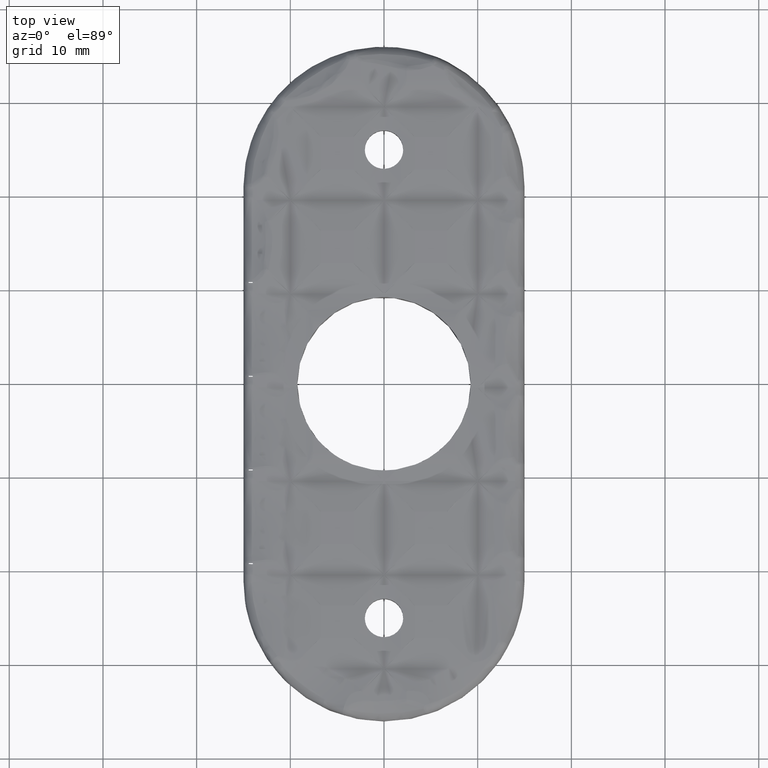
[diagram: clean part render]
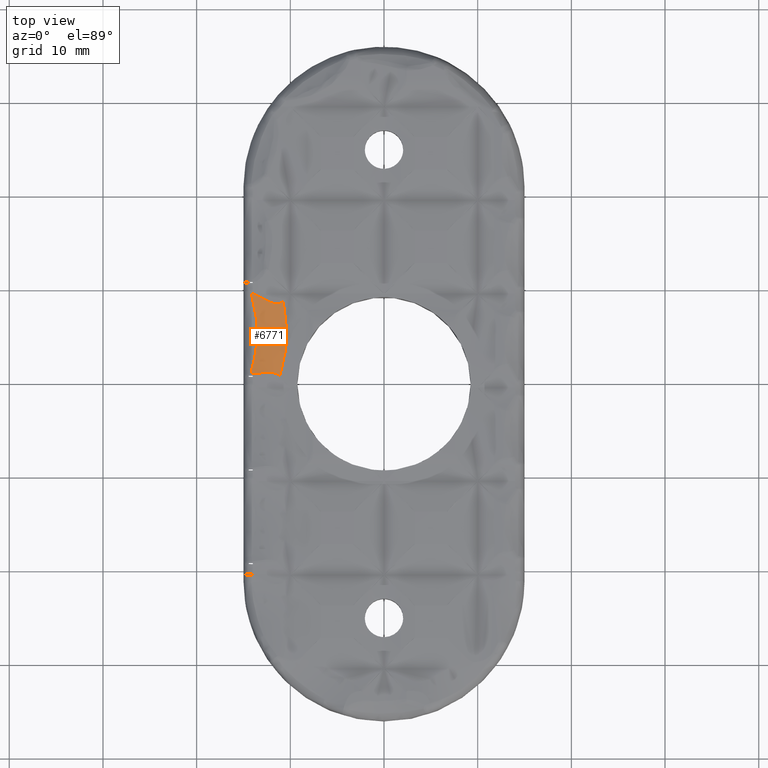
[diagram: same view with one face highlighted and labeled with its STEP entity id]
A machine part, top view. The second image highlights one B-rep face of the part: STEP entity #6771.
In plain terms, the highlighted face is a freeform B-spline surface patch.
Its self-contained STEP definition (entity closure, byte-faithful):
#437 = CARTESIAN_POINT ( 'NONE',  ( -10.87466178414930000, 8.699765000557459200, 3.281766979996149700 ) ) ;
#519 = CARTESIAN_POINT ( 'NONE',  ( -11.42092740004266500, 8.547254424072859200, 3.293171587339630300 ) ) ;
#610 = CARTESIAN_POINT ( 'NONE',  ( -12.48184899409607400, 8.823758500154626800, 3.265062507133348100 ) ) ;
#691 = CARTESIAN_POINT ( 'NONE',  ( -13.50750079150620700, 9.406155201346189500, 3.234101297676752500 ) ) ;
#776 = CARTESIAN_POINT ( 'NONE',  ( -13.37116701426320700, 1.146192001856436200, 3.315214914202278900 ) ) ;
#862 = CARTESIAN_POINT ( 'NONE',  ( -12.09510130457092300, 1.218639430366806400, 3.343910580868963300 ) ) ;
#916 = CARTESIAN_POINT ( 'NONE',  ( -13.04417683816766900, 0.09030010236800163600, 3.592215643987426000 ) ) ;
#953 = CARTESIAN_POINT ( 'NONE',  ( -11.20446670925250900, 0.9124958974216875700, 3.312536164362442500 ) ) ;
#1009 = CARTESIAN_POINT ( 'NONE',  ( -11.63319821652235600, -0.6081791308298403200, 3.363873608086515300 ) ) ;
#1085 = CARTESIAN_POINT ( 'NONE',  ( -12.39944851465211800, 2.075227780815310600, 3.409473423947328100 ) ) ;
#1174 = CARTESIAN_POINT ( 'NONE',  ( -13.56409166697590000, 4.414832797354014500, 2.909016898504811300 ) ) ;
#1276 = CARTESIAN_POINT ( 'NONE',  ( -10.43549560113782200, 5.918651907426072600, 3.258198029076116800 ) ) ;
#1281 = CARTESIAN_POINT ( 'NONE',  ( -13.51958920513204300, 6.231592275085016100, 2.890499514395492600 ) ) ;
#1360 = CARTESIAN_POINT ( 'NONE',  ( -12.16341554512006300, 7.758583181134633300, 3.352130903120381900 ) ) ;
#1381 = CARTESIAN_POINT ( 'NONE',  ( -10.45949719331283300, 6.505171566060156800, 3.259127644572987300 ) ) ;
#1388 = ORIENTED_EDGE ( 'NONE', *, *, #13822, .T. ) ;
#1453 = CARTESIAN_POINT ( 'NONE',  ( -14.09643494445368700, 9.386120124792872900, 3.157733382537171600 ) ) ;
#1581 = CARTESIAN_POINT ( 'NONE',  ( -14.11273421136011800, 9.538250974054214700, 3.190425069796529300 ) ) ;
#2487 = VERTEX_POINT ( 'NONE', #19952 ) ;
#2616 = CARTESIAN_POINT ( 'NONE',  ( -11.53762277036861600, 8.548935912460365200, 3.292480972402487300 ) ) ;
#2704 = CARTESIAN_POINT ( 'NONE',  ( -12.73936669725891800, 8.955826002118197200, 3.255129159980486400 ) ) ;
#2787 = CARTESIAN_POINT ( 'NONE',  ( -13.62113267563676400, 9.471169034156524400, 3.232425419147550100 ) ) ;
#2874 = CARTESIAN_POINT ( 'NONE',  ( -13.32663879511839500, 1.152500130091513600, 3.316880323941927800 ) ) ;
#2965 = CARTESIAN_POINT ( 'NONE',  ( -11.89440570719550600, 1.190593939990756600, 3.342199290745189200 ) ) ;
#3097 = CARTESIAN_POINT ( 'NONE',  ( -14.15920025275442400, 1.448945431593638300, 3.190510178194459400 ) ) ;
#3185 = CARTESIAN_POINT ( 'NONE',  ( -10.88957950123553300, 1.627224252164623000, 3.284107355439476200 ) ) ;
#3267 = CARTESIAN_POINT ( 'NONE',  ( -12.04529104366121900, 4.382541873280622700, 3.325786844335302500 ) ) ;
#3346 = CARTESIAN_POINT ( 'NONE',  ( -13.52082440927108600, 5.783211263811679700, 2.891016134130446300 ) ) ;
#3352 = CARTESIAN_POINT ( 'NONE',  ( -13.53436659071912600, 4.799380890827339200, 2.896544140747739700 ) ) ;
#3365 = CARTESIAN_POINT ( 'NONE',  ( -11.05808497606114400, 1.007320153464411800, 3.298484344969879500 ) ) ;
#3443 = CARTESIAN_POINT ( 'NONE',  ( -10.86493635286983500, 9.335216498230813900, 3.281854033909832300 ) ) ;
#3469 = CARTESIAN_POINT ( 'NONE',  ( -10.55927620057288000, 7.659623143345839900, 3.263409684701794600 ) ) ;
#3545 = CARTESIAN_POINT ( 'NONE',  ( -12.94929926430130600, 10.70966542701519900, 3.562907734666128900 ) ) ;
#4614 = CARTESIAN_POINT ( 'NONE',  ( -10.75634458533840700, 8.795046064061816400, 3.274764121687998600 ) ) ;
#4616 = B_SPLINE_CURVE_WITH_KNOTS ( 'NONE', 3,
 ( #4614, #25407, #437, #6679, #21281, #8791, #23390, #10875, #25493, #12978, #519, #15079, #2616, #17172, #4691, #19267, #6772, #21363, #8871, #23481, #10965, #25573, #13060, #610, #15170, #2704, #17265, #4783, #19356, #6863, #21459, #8963, #23571, #11056, #25665, #13149, #691, #15256, #2787, #17347, #4870, #19446, #6952, #21538, #9052, #23657, #11141 ),
 .UNSPECIFIED., .F., .F.,
 ( 4, 2, 1, 2, 2, 2, 1, 2, 2, 2, 1, 1, 1, 2, 2, 2, 2, 1, 1, 2, 2, 2, 1, 1, 1, 1, 2, 2, 4 ),
 ( 0.0000000000000000000, 0.06250000000001071400, 0.09375000000001607000, 0.1093750000000187500, 0.1250000000000214300, 0.1875000000000328100, 0.2187500000000385000, 0.2343750000000413600, 0.2500000000000441900, 0.3750000000000592300, 0.4375000000000665600, 0.4687500000000695600, 0.4843750000000711100, 0.4921875000000710000, 0.5000000000000708300, 0.6250000000000677200, 0.6875000000000663900, 0.7187500000000655000, 0.7343750000000646100, 0.7421875000000645000, 0.7500000000000643900, 0.8125000000000509600, 0.8437500000000444100, 0.8593750000000407500, 0.8671875000000391900, 0.8710937500000384100, 0.8730468750000377500, 0.8750000000000370800, 1.000000000000000000 ),
 .UNSPECIFIED. ) ;
#4691 = CARTESIAN_POINT ( 'NONE',  ( -11.59917093864217100, 8.553216121277667800, 3.291786912753381000 ) ) ;
#4783 = CARTESIAN_POINT ( 'NONE',  ( -13.00731904673654800, 9.109683404701140600, 3.246056956104186800 ) ) ;
#4870 = CARTESIAN_POINT ( 'NONE',  ( -13.66906362004024300, 9.497935616048451400, 3.231825096355314100 ) ) ;
#4959 = CARTESIAN_POINT ( 'NONE',  ( -13.05064809003074600, 1.189444943052436100, 3.326736286243830800 ) ) ;
#5037 = CARTESIAN_POINT ( 'NONE',  ( -11.81919834557308100, 1.175238429485362800, 3.340858013633919700 ) ) ;
#5175 = CARTESIAN_POINT ( 'NONE',  ( -12.75344707017632500, 0.8298454196064046800, 3.504347110888454500 ) ) ;
#5264 = CARTESIAN_POINT ( 'NONE',  ( -13.77290830987101300, 2.933399083230137500, 3.000712335627175900 ) ) ;
#5347 = CARTESIAN_POINT ( 'NONE',  ( -10.44875268274208000, 4.731759057720472200, 3.258696660578375100 ) ) ;
#5439 = CARTESIAN_POINT ( 'NONE',  ( -12.02527892522976000, 6.334816474213909900, 3.321404032283717300 ) ) ;
#5449 = CARTESIAN_POINT ( 'NONE',  ( -13.63193643699951400, 3.762760040796899700, 2.937713720204648800 ) ) ;
#5463 = CARTESIAN_POINT ( 'NONE',  ( -10.88958192268262500, 1.627225364026385400, 3.284107542422489700 ) ) ;
#5534 = CARTESIAN_POINT ( 'NONE',  ( -13.75983921469286900, 8.052052350926397000, 2.994496792762165500 ) ) ;
#5556 = CARTESIAN_POINT ( 'NONE',  ( -10.75434718435680300, 8.785137073939958800, 3.274633317936466200 ) ) ;
#5665 = ORIENTED_EDGE ( 'NONE', *, *, #11723, .F. ) ;
#6185 = ORIENTED_EDGE ( 'NONE', *, *, #23645, .F. ) ;
#6270 =( BOUNDED_CURVE ( )  B_SPLINE_CURVE ( 3, ( #11569, #26261, #3365, #17966, #5463, #20051, #7565, #22186, #9667, #24268, #11754, #26363, #13874, #1381, #15943, #3469, #18058, #5556, #20150, #7660 ),
 .UNSPECIFIED., .F., .T. ) 
 B_SPLINE_CURVE_WITH_KNOTS ( ( 4, 2, 2, 2, 2, 2, 2, 2, 2, 4 ),
 ( 0.0000000000000000000, 0.03789907707367977400, 0.1445874209061086000, 0.3579641085709662800, 0.4646524524033955300, 0.5713407962358239000, 0.6780291400682523200, 0.7847174839006816300, 0.9980941715655392600, 1.000000000000000000 ),
 .UNSPECIFIED. ) 
 CURVE ( )  GEOMETRIC_REPRESENTATION_ITEM ( )  RATIONAL_B_SPLINE_CURVE ( ( 0.9999999782882212900, 0.9999999783321234000, 0.9999999783758946000, 0.9999999785417952300, 0.9999999786625273200, 0.9999999790017243300, 0.9999999791961837700, 0.9999999794060492300, 0.9999999794624612200, 0.9999999795437425300, 0.9999999795685481400, 0.9999999795832778000, 0.9999999795732350500, 0.9999999795201551800, 0.9999999794771943200, 0.9999999793042714200, 0.9999999791297846700, 0.9999999789143463300, 0.9999999789124365300, 0.9999999789105242800 ) ) 
 REPRESENTATION_ITEM ( '' )  );
#6679 = CARTESIAN_POINT ( 'NONE',  ( -10.97575507670656200, 8.647046270643265600, 3.285904851254221700 ) ) ;
#6771 = ADVANCED_FACE ( 'NONE', ( #15491 ), #7012, .T. ) ;
#6772 = CARTESIAN_POINT ( 'NONE',  ( -11.90268699193285900, 8.601091141775944100, 3.285764694541534000 ) ) ;
#6863 = CARTESIAN_POINT ( 'NONE',  ( -13.16373132814889900, 9.202200883054201700, 3.241500632340805300 ) ) ;
#6952 = CARTESIAN_POINT ( 'NONE',  ( -13.68061624377376300, 9.504334812896132700, 3.231688039706854400 ) ) ;
#7012 =( BOUNDED_SURFACE ( )  B_SPLINE_SURFACE ( 3, 2, ( 
 ( #25977, #916, #13482 ),
 ( #1009, #15558, #3097 ),
 ( #17678, #5175, #19755 ),
 ( #7268, #21879, #9373 ),
 ( #23973, #11464, #26069 ),
 ( #13568, #1085, #15655 ),
 ( #3185, #17763, #5264 ),
 ( #19854, #7355, #21964 ),
 ( #9469, #24066, #11552 ),
 ( #26153, #13667, #1174 ),
 ( #15732, #3267, #17852 ),
 ( #5347, #19936, #7451 ),
 ( #22060, #9551, #24166 ),
 ( #11646, #26242, #13764 ),
 ( #1276, #15821, #3346 ),
 ( #17948, #5439, #20029 ),
 ( #7545, #22169, #9646 ),
 ( #24252, #11736, #26344 ),
 ( #13854, #1360, #15921 ),
 ( #3443, #18034, #5534 ),
 ( #20124, #7638, #22255 ),
 ( #9745, #24346, #11826 ),
 ( #26439, #13944, #1453 ),
 ( #16019, #3545, #18133 ) ),
 .UNSPECIFIED., .F., .F., .T. ) 
 B_SPLINE_SURFACE_WITH_KNOTS ( ( 4, 2, 2, 2, 2, 2, 2, 2, 2, 2, 2, 4 ),
 ( 3, 3 ),
 ( 0.02529798602486972600, 0.02705041378835734000, 0.02792662767010114700, 0.02880284155184495400, 0.03055526931533256900, 0.03143148319707637900, 0.03230769707882018300, 0.03318391096056398600, 0.03406012484230779700, 0.03581255260579541100, 0.03756498036928303300, 0.03931740813277064700 ),
 ( 0.0000000000000000000, 1.000000000000000000 ),
 .UNSPECIFIED. ) 
 GEOMETRIC_REPRESENTATION_ITEM ( )  RATIONAL_B_SPLINE_SURFACE ( (
 ( 1.000000000000000000, 0.9865228880414195200, 1.000000000000000000),
 ( 1.000000000000000000, 0.9866499858530630700, 1.000000000000000000),
 ( 1.000000000000000000, 0.9867939617033288900, 1.000000000000000000),
 ( 1.000000000000000000, 0.9870143637708548300, 1.000000000000000000),
 ( 1.000000000000000000, 0.9870885360961190200, 1.000000000000000000),
 ( 1.000000000000000000, 0.9872341892544938000, 1.000000000000000000),
 ( 1.000000000000000000, 0.9873060146117510500, 1.000000000000000000),
 ( 1.000000000000000000, 0.9875078080819579300, 1.000000000000000000),
 ( 1.000000000000000000, 0.9876234949098876600, 1.000000000000000000),
 ( 1.000000000000000000, 0.9877483470634638200, 1.000000000000000000),
 ( 1.000000000000000000, 0.9877819074032345700, 1.000000000000000000),
 ( 1.000000000000000000, 0.9878302628868926800, 1.000000000000000000),
 ( 1.000000000000000000, 0.9878450201331052700, 1.000000000000000000),
 ( 1.000000000000000000, 0.9878537830158120600, 1.000000000000000000),
 ( 1.000000000000000000, 0.9878478084050871200, 1.000000000000000000),
 ( 1.000000000000000000, 0.9878162303633247800, 1.000000000000000000),
 ( 1.000000000000000000, 0.9877906723268938800, 1.000000000000000000),
 ( 1.000000000000000000, 0.9876877979019270700, 1.000000000000000000),
 ( 1.000000000000000000, 0.9875839931266172700, 1.000000000000000000),
 ( 1.000000000000000000, 0.9873299272824800400, 1.000000000000000000),
 ( 1.000000000000000000, 0.9871838314582126500, 1.000000000000000000),
 ( 1.000000000000000000, 0.9868892815763932200, 1.000000000000000000),
 ( 1.000000000000000000, 0.9867404564638584400, 1.000000000000000000),
 ( 1.000000000000000000, 0.9866059135401082900, 1.000000000000000000) ) ) 
 REPRESENTATION_ITEM ( '' )  SURFACE ( )  );
#7036 = CARTESIAN_POINT ( 'NONE',  ( -12.76598258149904600, 1.217382138473578600, 3.335018929993474900 ) ) ;
#7119 = CARTESIAN_POINT ( 'NONE',  ( -11.72550645088238500, 1.153494885474110300, 3.338816748429758200 ) ) ;
#7133 = CARTESIAN_POINT ( 'NONE',  ( -14.09532383486309300, 9.713116667805557800, 3.228351946617814800 ) ) ;
#7268 = CARTESIAN_POINT ( 'NONE',  ( -11.18535962916675100, 0.5879923340165458300, 3.310601348441469100 ) ) ;
#7355 = CARTESIAN_POINT ( 'NONE',  ( -12.21141655933762000, 2.972742457010492300, 3.363269689460783400 ) ) ;
#7451 = CARTESIAN_POINT ( 'NONE',  ( -13.52837188819692900, 4.995030273274492700, 2.894130872656333500 ) ) ;
#7545 = CARTESIAN_POINT ( 'NONE',  ( -10.47898174442854500, 6.795744855790053900, 3.259894215094657700 ) ) ;
#7552 = CARTESIAN_POINT ( 'NONE',  ( -13.80427671356952000, 2.768312468179908500, 3.014775230289282500 ) ) ;
#7565 = CARTESIAN_POINT ( 'NONE',  ( -10.61100226224643200, 3.001438652406124100, 3.265965102536776000 ) ) ;
#7638 = CARTESIAN_POINT ( 'NONE',  ( -12.43275277201762900, 9.114416218026498500, 3.417447912242289800 ) ) ;
#7660 = CARTESIAN_POINT ( 'NONE',  ( -10.75634458533840700, 8.795046064061816400, 3.274764121687998600 ) ) ;
#7807 = CARTESIAN_POINT ( 'NONE',  ( -14.12127809581428800, 1.579768281975386400, 3.171527060845510200 ) ) ;
#7859 = CARTESIAN_POINT ( 'NONE',  ( -14.09532383486309300, 9.713116667805557800, 3.228351946617814800 ) ) ;
#8112 = ORIENTED_EDGE ( 'NONE', *, *, #25564, .T. ) ;
#8442 = CARTESIAN_POINT ( 'NONE',  ( -14.12127477382670200, 9.451173202345479800, 3.171531770051150700 ) ) ;
#8791 = CARTESIAN_POINT ( 'NONE',  ( -11.08388313477164600, 8.604830162548010400, 3.289269690801437800 ) ) ;
#8871 = CARTESIAN_POINT ( 'NONE',  ( -12.23064472858803800, 8.711513620547785700, 3.274717049879937800 ) ) ;
#8963 = CARTESIAN_POINT ( 'NONE',  ( -13.25251437755779100, 9.255149396043071500, 3.239252241716423300 ) ) ;
#9052 = CARTESIAN_POINT ( 'NONE',  ( -13.76740881597524400, 9.552270216152274800, 3.230678346802859500 ) ) ;
#9054 = CARTESIAN_POINT ( 'NONE',  ( -13.80899501544988100, 1.081783486568093800, 3.297871665487178000 ) ) ;
#9140 = CARTESIAN_POINT ( 'NONE',  ( -12.61137007611915500, 1.226741868311233900, 3.338528992399527200 ) ) ;
#9224 = CARTESIAN_POINT ( 'NONE',  ( -11.57301335210608400, 1.104158048551282500, 3.333647135797540800 ) ) ;
#9373 = CARTESIAN_POINT ( 'NONE',  ( -13.93021022232290400, 2.243275418868157600, 3.075001816704300100 ) ) ;
#9469 = CARTESIAN_POINT ( 'NONE',  ( -10.61099972381245700, 3.001437933808555100, 3.265964968062029100 ) ) ;
#9551 = CARTESIAN_POINT ( 'NONE',  ( -12.00864983365822000, 5.112374892183784600, 3.317789529134918900 ) ) ;
#9646 = CARTESIAN_POINT ( 'NONE',  ( -13.54553737235573200, 6.365663158271441800, 2.901255423320694000 ) ) ;
#9655 = CARTESIAN_POINT ( 'NONE',  ( -14.03331620222212600, 1.857343164886623900, 3.125662698468927700 ) ) ;
#9667 = CARTESIAN_POINT ( 'NONE',  ( -10.48583701402381300, 4.146969531282655600, 3.260196637819501300 ) ) ;
#9745 = CARTESIAN_POINT ( 'NONE',  ( -11.32358848873924400, 10.86759236719698900, 3.324873435906937400 ) ) ;
#9760 = B_SPLINE_CURVE_WITH_KNOTS ( 'NONE', 3,
 ( #11058, #23573, #9054, #23659, #11143, #25751, #13251, #776, #15343, #2874, #17437, #4959, #19540, #7036, #21629, #9140, #23752, #11221, #25836, #13345, #862, #15424, #2965, #17528, #5037, #19622, #7119, #21724, #9224, #23834, #11319, #25918, #13432, #953, #15510 ),
 .UNSPECIFIED., .F., .F.,
 ( 4, 2, 2, 1, 2, 2, 2, 1, 1, 2, 2, 2, 1, 1, 2, 2, 2, 2, 2, 4 ),
 ( 0.0000000000000000000, 0.1250000000000007200, 0.1875000000000002800, 0.2187500000000000600, 0.2343749999999999700, 0.2499999999999998600, 0.3749999999999973900, 0.4374999999999961700, 0.4687499999999956100, 0.4843749999999952800, 0.4999999999999950000, 0.6250000000000005600, 0.6875000000000025500, 0.7187500000000043300, 0.7343750000000053300, 0.7500000000000063300, 0.8125000000000051100, 0.8437500000000045500, 0.8750000000000038900, 1.000000000000000000 ),
 .UNSPECIFIED. ) ;
#10875 = CARTESIAN_POINT ( 'NONE',  ( -11.14219500479779300, 8.587464994656302900, 3.290629829669808900 ) ) ;
#10918 = B_SPLINE_CURVE_WITH_KNOTS ( 'NONE', 3,
 ( #16140, #1581, #20336, #7859 ),
 .UNSPECIFIED., .F., .F.,
 ( 4, 4 ),
 ( 0.0000000000000000000, 1.000000000000000000 ),
 .UNSPECIFIED. ) ;
#10965 = CARTESIAN_POINT ( 'NONE',  ( -12.42451285788182400, 8.796592614038051000, 3.267288569751532400 ) ) ;
#10997 = CARTESIAN_POINT ( 'NONE',  ( -14.06797781313243500, 1.046086576954675000, 3.286946360147338500 ) ) ;
#11056 = CARTESIAN_POINT ( 'NONE',  ( -13.28110449620301900, 9.272219750931794700, 3.238573562046463700 ) ) ;
#11058 = CARTESIAN_POINT ( 'NONE',  ( -14.06797781313243500, 1.046086576954675000, 3.286946360147338500 ) ) ;
#11141 = CARTESIAN_POINT ( 'NONE',  ( -14.09532383486309300, 9.713116667805557800, 3.228351946617814800 ) ) ;
#11143 = CARTESIAN_POINT ( 'NONE',  ( -13.55641455556295800, 1.119181181105474200, 3.308071820122237700 ) ) ;
#11221 = CARTESIAN_POINT ( 'NONE',  ( -12.56687686355299900, 1.228720538661507900, 3.339422368149678600 ) ) ;
#11319 = CARTESIAN_POINT ( 'NONE',  ( -11.48501458073941700, 1.068596181306179300, 3.329789430577027700 ) ) ;
#11464 = CARTESIAN_POINT ( 'NONE',  ( -12.50850507806029200, 1.646000378509323300, 3.437634615321284700 ) ) ;
#11552 = CARTESIAN_POINT ( 'NONE',  ( -13.61988823321464200, 3.845974385272085800, 2.932669570869038500 ) ) ;
#11569 = CARTESIAN_POINT ( 'NONE',  ( -11.11274259044614300, 0.8257836903783811700, 3.303668035484684100 ) ) ;
#11646 = CARTESIAN_POINT ( 'NONE',  ( -10.43101406119928000, 5.621644656706349600, 3.258035750146912200 ) ) ;
#11656 = CARTESIAN_POINT ( 'NONE',  ( -13.80389745534604800, 8.260930857916848800, 3.014616895120419700 ) ) ;
#11723 = EDGE_CURVE ( 'NONE', #12621, #2487, #19651, .T. ) ;
#11736 = CARTESIAN_POINT ( 'NONE',  ( -12.10098317006502600, 7.290493957024653000, 3.338127140998332200 ) ) ;
#11754 = CARTESIAN_POINT ( 'NONE',  ( -10.43763682166064700, 5.028569637550112300, 3.258284698456695300 ) ) ;
#11826 = CARTESIAN_POINT ( 'NONE',  ( -14.00240187261793600, 9.069658557376042700, 3.110169720658370700 ) ) ;
#12144 = ORIENTED_EDGE ( 'NONE', *, *, #26438, .T. ) ;
#12621 = VERTEX_POINT ( 'NONE', #10997 ) ;
#12978 = CARTESIAN_POINT ( 'NONE',  ( -11.30670225598013300, 8.553902815468427800, 3.293052254644927200 ) ) ;
#13060 = CARTESIAN_POINT ( 'NONE',  ( -12.47089807838419300, 8.818503265994882800, 3.265487877662526500 ) ) ;
#13149 = CARTESIAN_POINT ( 'NONE',  ( -13.40815032485330600, 9.348076589484081800, 3.235819419603213300 ) ) ;
#13251 = CARTESIAN_POINT ( 'NONE',  ( -13.41705148405406700, 1.139622828122665200, 3.313482667465114300 ) ) ;
#13345 = CARTESIAN_POINT ( 'NONE',  ( -12.28558990709500500, 1.232824992875781100, 3.343680191216500800 ) ) ;
#13432 = CARTESIAN_POINT ( 'NONE',  ( -11.30995609188717100, 0.9838477827915485000, 3.320467434079536200 ) ) ;
#13482 = CARTESIAN_POINT ( 'NONE',  ( -14.26264442294518100, 1.161309257224448600, 3.246984982129753000 ) ) ;
#13568 = CARTESIAN_POINT ( 'NONE',  ( -10.95797487739073400, 1.358926034314840400, 3.289514683075194700 ) ) ;
#13667 = CARTESIAN_POINT ( 'NONE',  ( -12.06498323260625800, 4.143381588409205600, 3.330121258579597000 ) ) ;
#13764 = CARTESIAN_POINT ( 'NONE',  ( -13.51826838244334500, 5.585977394614880100, 2.889965525586535700 ) ) ;
#13772 = CARTESIAN_POINT ( 'NONE',  ( -13.57771037246138200, 6.928603619138152100, 2.913729483964892600 ) ) ;
#13822 = EDGE_CURVE ( 'NONE', #20288, #26055, #4616, .T. ) ;
#13854 = CARTESIAN_POINT ( 'NONE',  ( -10.64175969911070000, 8.225144628693035600, 3.267282125121043500 ) ) ;
#13874 = CARTESIAN_POINT ( 'NONE',  ( -10.43549821064153000, 5.918651792202870100, 3.258198127436018300 ) ) ;
#13944 = CARTESIAN_POINT ( 'NONE',  ( -12.80186294633619500, 10.33872206242159700, 3.518017786733674600 ) ) ;
#14856 = VERTEX_POINT ( 'NONE', #8442 ) ;
#15079 = CARTESIAN_POINT ( 'NONE',  ( -11.47875417534736200, 8.546366061776737400, 3.292996085648504300 ) ) ;
#15104 = EDGE_CURVE ( 'NONE', #12621, #17566, #9760, .T. ) ;
#15170 = CARTESIAN_POINT ( 'NONE',  ( -12.61153442499187500, 8.886455293029120700, 3.260026275771639600 ) ) ;
#15256 = CARTESIAN_POINT ( 'NONE',  ( -13.55873020756943100, 9.435813321312842600, 3.233285244806244100 ) ) ;
#15343 = CARTESIAN_POINT ( 'NONE',  ( -13.34066960516034300, 1.150522615656521800, 3.316357956337538500 ) ) ;
#15424 = CARTESIAN_POINT ( 'NONE',  ( -12.00125349686779200, 1.208480088750389700, 3.343542085019530300 ) ) ;
#15491 = FACE_OUTER_BOUND ( 'NONE', #15908, .T. ) ;
#15510 = CARTESIAN_POINT ( 'NONE',  ( -11.11274259044614300, 0.8257836903783811700, 3.303668035484684100 ) ) ;
#15558 = CARTESIAN_POINT ( 'NONE',  ( -12.89220939444021900, 0.4483395672001727600, 3.544598989016520400 ) ) ;
#15655 = CARTESIAN_POINT ( 'NONE',  ( -13.80979069224771600, 2.755230047026371800, 3.017704978315047800 ) ) ;
#15732 = CARTESIAN_POINT ( 'NONE',  ( -10.48583442473960400, 4.146969140143365700, 3.260196528915264600 ) ) ;
#15821 = CARTESIAN_POINT ( 'NONE',  ( -12.00702503873150000, 5.849260683480739700, 3.317433820585603300 ) ) ;
#15832 = CARTESIAN_POINT ( 'NONE',  ( -13.51955096938270600, 5.157401777888833500, 2.890486902517778000 ) ) ;
#15908 = EDGE_LOOP ( 'NONE', ( #23862, #12144, #1388, #6185, #8112, #5665 ) ) ;
#15921 = CARTESIAN_POINT ( 'NONE',  ( -13.63727966068004900, 7.314885937011385200, 2.939970348975448300 ) ) ;
#15943 = CARTESIAN_POINT ( 'NONE',  ( -10.47898433648816600, 6.795744489876657500, 3.259894322588043500 ) ) ;
#16019 = CARTESIAN_POINT ( 'NONE',  ( -11.71398546595236200, 11.79286866007680100, 3.377743331294504900 ) ) ;
#16080 = CARTESIAN_POINT ( 'NONE',  ( -14.06797781313243500, 1.046086576954675000, 3.286946360147338500 ) ) ;
#16140 = CARTESIAN_POINT ( 'NONE',  ( -14.12127477382670200, 9.451173202345479800, 3.171531770051150700 ) ) ;
#17172 = CARTESIAN_POINT ( 'NONE',  ( -11.57709720884173000, 8.551395000339256900, 3.292063763919493600 ) ) ;
#17265 = CARTESIAN_POINT ( 'NONE',  ( -12.93930932066071200, 9.069962368822043400, 3.248263228965925900 ) ) ;
#17347 = CARTESIAN_POINT ( 'NONE',  ( -13.65298004311985200, 9.488992712520966300, 3.232020801833665100 ) ) ;
#17437 = CARTESIAN_POINT ( 'NONE',  ( -13.17969700702483100, 1.172987619005930500, 3.322305020065687400 ) ) ;
#17528 = CARTESIAN_POINT ( 'NONE',  ( -11.84920146538688900, 1.181566724449385700, 3.341421860784218100 ) ) ;
#17566 = VERTEX_POINT ( 'NONE', #20394 ) ;
#17594 = CARTESIAN_POINT ( 'NONE',  ( -14.12127477382670200, 9.451173202345479800, 3.171531770051150700 ) ) ;
#17678 = CARTESIAN_POINT ( 'NONE',  ( -11.44089057449315300, -0.1467463979757211700, 3.338851244391958700 ) ) ;
#17763 = CARTESIAN_POINT ( 'NONE',  ( -12.34865525718454800, 2.297191630587016100, 3.396776719488726400 ) ) ;
#17852 = CARTESIAN_POINT ( 'NONE',  ( -13.54940608328113800, 4.606688312498230100, 2.902881476174438800 ) ) ;
#17948 = CARTESIAN_POINT ( 'NONE',  ( -10.45949459343190900, 6.505171848923945200, 3.259127541167351700 ) ) ;
#17957 = CARTESIAN_POINT ( 'NONE',  ( -13.59059611231312000, 4.103349069089897000, 2.920175415793627500 ) ) ;
#17966 = CARTESIAN_POINT ( 'NONE',  ( -10.95797726945174100, 1.358927222985525600, 3.289514882140998500 ) ) ;
#18034 = CARTESIAN_POINT ( 'NONE',  ( -12.33049606290905400, 8.677146081868107400, 3.392053729346276900 ) ) ;
#18058 = CARTESIAN_POINT ( 'NONE',  ( -10.64176222512520600, 8.225143854180862100, 3.267282265973335200 ) ) ;
#18133 = CARTESIAN_POINT ( 'NONE',  ( -14.19776056355254400, 9.684107608300147200, 3.211922228517028800 ) ) ;
#18976 = CARTESIAN_POINT ( 'NONE',  ( -10.75634458533840700, 8.795046064061816400, 3.274764121687998600 ) ) ;
#19267 = CARTESIAN_POINT ( 'NONE',  ( -11.75885214013282200, 8.568924915928578300, 3.289535029025779400 ) ) ;
#19356 = CARTESIAN_POINT ( 'NONE',  ( -13.11127211202165600, 9.171064726970069400, 3.242980746461474200 ) ) ;
#19446 = CARTESIAN_POINT ( 'NONE',  ( -13.67599066250725500, 9.501774363242669000, 3.231742667673464200 ) ) ;
#19540 = CARTESIAN_POINT ( 'NONE',  ( -12.86033041552046900, 1.208935942812401400, 3.332418480993128100 ) ) ;
#19622 = CARTESIAN_POINT ( 'NONE',  ( -11.80536841165074000, 1.172177726624177100, 3.340577675028870700 ) ) ;
#19651 = B_SPLINE_CURVE_WITH_KNOTS ( 'NONE', 3,
 ( #16080, #24137, #20282, #7807 ),
 .UNSPECIFIED., .F., .F.,
 ( 4, 4 ),
 ( 0.0000000000000000000, 1.000000000000000000 ),
 .UNSPECIFIED. ) ;
#19755 = CARTESIAN_POINT ( 'NONE',  ( -14.06237197783453600, 1.755356815528483300, 3.140426503493611000 ) ) ;
#19854 = CARTESIAN_POINT ( 'NONE',  ( -10.70554964872654600, 2.443753979240166800, 3.270891118744907000 ) ) ;
#19936 = CARTESIAN_POINT ( 'NONE',  ( -12.01711552618520600, 4.866649668810027600, 3.319619332029985200 ) ) ;
#19944 = CARTESIAN_POINT ( 'NONE',  ( -14.03271340566694600, 9.171747965359593000, 3.125367287882419000 ) ) ;
#19952 = CARTESIAN_POINT ( 'NONE',  ( -14.12127809581428800, 1.579768281975386400, 3.171527060845510200 ) ) ;
#20029 = CARTESIAN_POINT ( 'NONE',  ( -13.53446775809951100, 6.172702083113571300, 2.896664440534598000 ) ) ;
#20038 = CARTESIAN_POINT ( 'NONE',  ( -13.73847089290609300, 3.096181550826697200, 2.984865109730872000 ) ) ;
#20051 = CARTESIAN_POINT ( 'NONE',  ( -10.70555214833789200, 2.443754857316164500, 3.270891272085147100 ) ) ;
#20124 = CARTESIAN_POINT ( 'NONE',  ( -11.00246041685548800, 9.863776920445007000, 3.292407826921802900 ) ) ;
#20150 = CARTESIAN_POINT ( 'NONE',  ( -10.75534593266172600, 8.790092405747991200, 3.274698655184709500 ) ) ;
#20282 = CARTESIAN_POINT ( 'NONE',  ( -14.10392154486885400, 1.402873535575684100, 3.209912265309125400 ) ) ;
#20288 = VERTEX_POINT ( 'NONE', #18976 ) ;
#20336 = CARTESIAN_POINT ( 'NONE',  ( -14.10407492220585200, 9.625560536088743300, 3.209389299119499200 ) ) ;
#20394 = CARTESIAN_POINT ( 'NONE',  ( -11.11274259044614300, 0.8257836903783811700, 3.303668035484684100 ) ) ;
#21281 = CARTESIAN_POINT ( 'NONE',  ( -11.02832938111366100, 8.623740584896829400, 3.287766738106795600 ) ) ;
#21363 = CARTESIAN_POINT ( 'NONE',  ( -12.12090973996304100, 8.671084082635758300, 3.278642080578986700 ) ) ;
#21459 = CARTESIAN_POINT ( 'NONE',  ( -13.22575820303390000, 9.239179312540461100, 3.239904979507929500 ) ) ;
#21538 = CARTESIAN_POINT ( 'NONE',  ( -13.68396946175013600, 9.506188203263780800, 3.231648830671999500 ) ) ;
#21629 = CARTESIAN_POINT ( 'NONE',  ( -12.65750273479201100, 1.224401009917901900, 3.337555825359885800 ) ) ;
#21724 = CARTESIAN_POINT ( 'NONE',  ( -11.66338418087674400, 1.135670771779514000, 3.336994710011544500 ) ) ;
#21879 = CARTESIAN_POINT ( 'NONE',  ( -12.56700121483531700, 1.437533458641989700, 3.453155305144945100 ) ) ;
#21964 = CARTESIAN_POINT ( 'NONE',  ( -13.67271060664490500, 3.475632705465565600, 2.955388505240654800 ) ) ;
#22060 = CARTESIAN_POINT ( 'NONE',  ( -10.43763421301748700, 5.028569498392764500, 3.258284599650172400 ) ) ;
#22169 = CARTESIAN_POINT ( 'NONE',  ( -12.04009606898918800, 6.575366959819151100, 3.324634238299557100 ) ) ;
#22176 = CARTESIAN_POINT ( 'NONE',  ( -13.95155498063218500, 2.150351714616213900, 3.085107339596015100 ) ) ;
#22186 = CARTESIAN_POINT ( 'NONE',  ( -10.51177622028941800, 3.858061429284393600, 3.261284143495608600 ) ) ;
#22255 = CARTESIAN_POINT ( 'NONE',  ( -13.83421290679598300, 8.403053940699631900, 3.028616572858656500 ) ) ;
#23390 = CARTESIAN_POINT ( 'NONE',  ( -11.12157490940843200, 8.593176937545967700, 3.290186508848418300 ) ) ;
#23481 = CARTESIAN_POINT ( 'NONE',  ( -12.35971819695013500, 8.766956532077196900, 3.269795460590959400 ) ) ;
#23571 = CARTESIAN_POINT ( 'NONE',  ( -13.27038992980227200, 9.265821389931645100, 3.238824335262767000 ) ) ;
#23573 = CARTESIAN_POINT ( 'NONE',  ( -13.93785040810117500, 1.063074715748654600, 3.292477184047658300 ) ) ;
#23645 = EDGE_CURVE ( 'NONE', #14856, #26055, #10918, .T. ) ;
#23657 = CARTESIAN_POINT ( 'NONE',  ( -13.90655710387215800, 9.629081279813767900, 3.229431297882067400 ) ) ;
#23659 = CARTESIAN_POINT ( 'NONE',  ( -13.61913497017653000, 1.109834263387846200, 3.305571075770583200 ) ) ;
#23752 = CARTESIAN_POINT ( 'NONE',  ( -12.58069677865257900, 1.228147715544842100, 3.339151656893682800 ) ) ;
#23834 = CARTESIAN_POINT ( 'NONE',  ( -11.54335856474119000, 1.092858165173999900, 3.332428921911870600 ) ) ;
#23862 = ORIENTED_EDGE ( 'NONE', *, *, #15104, .T. ) ;
#23973 = CARTESIAN_POINT ( 'NONE',  ( -11.10571013709690100, 0.8400373725337544300, 3.302751454853690000 ) ) ;
#24066 = CARTESIAN_POINT ( 'NONE',  ( -12.14007582552376400, 3.434299448955667500, 3.346968711065204000 ) ) ;
#24137 = CARTESIAN_POINT ( 'NONE',  ( -14.08608896316466800, 1.225025517709176900, 3.248584083875633700 ) ) ;
#24166 = CARTESIAN_POINT ( 'NONE',  ( -13.52203746072047100, 5.192133446648806900, 2.891520840442099300 ) ) ;
#24174 = CARTESIAN_POINT ( 'NONE',  ( -13.95077716263698500, 8.877615955526541900, 3.084740003237456600 ) ) ;
#24252 = CARTESIAN_POINT ( 'NONE',  ( -10.55927364099939300, 7.659623756181671800, 3.263409560654689100 ) ) ;
#24259 = CARTESIAN_POINT ( 'NONE',  ( -14.12127809581428800, 1.579768281975386400, 3.171527060845510200 ) ) ;
#24268 = CARTESIAN_POINT ( 'NONE',  ( -10.44875528694144900, 4.731759281700556500, 3.258696761737521100 ) ) ;
#24346 = CARTESIAN_POINT ( 'NONE',  ( -12.66827399355019200, 9.944669281175443100, 3.480385656058063900 ) ) ;
#25407 = CARTESIAN_POINT ( 'NONE',  ( -10.81267126198111200, 8.743075510148930400, 3.278456595185111700 ) ) ;
#25493 = CARTESIAN_POINT ( 'NONE',  ( -11.23245745340867600, 8.564853714170325800, 3.292345256789514200 ) ) ;
#25564 = EDGE_CURVE ( 'NONE', #14856, #2487, #26474, .T. ) ;
#25573 = CARTESIAN_POINT ( 'NONE',  ( -12.45233672926558400, 8.809687595464174200, 3.266208607664646400 ) ) ;
#25665 = CARTESIAN_POINT ( 'NONE',  ( -13.34606594040386600, 9.311014980819042100, 3.237078791430693300 ) ) ;
#25751 = CARTESIAN_POINT ( 'NONE',  ( -13.46333861008854700, 1.132865057521949200, 3.311699606431109300 ) ) ;
#25836 = CARTESIAN_POINT ( 'NONE',  ( -12.41630888695717700, 1.234098874129154100, 3.342233557544781200 ) ) ;
#25918 = CARTESIAN_POINT ( 'NONE',  ( -11.45767773908046300, 1.056297335009248800, 3.328441151310487900 ) ) ;
#25977 = CARTESIAN_POINT ( 'NONE',  ( -11.84715504734027600, -1.041300831269790500, 3.398498752361843500 ) ) ;
#26055 = VERTEX_POINT ( 'NONE', #7133 ) ;
#26069 = CARTESIAN_POINT ( 'NONE',  ( -13.88835697449635600, 2.410651191824631800, 3.054811542851373600 ) ) ;
#26153 = CARTESIAN_POINT ( 'NONE',  ( -10.51177364146524200, 3.858060955560985100, 3.261284029204158900 ) ) ;
#26242 = CARTESIAN_POINT ( 'NONE',  ( -12.00361099591832000, 5.603368238919278700, 3.316698269204835500 ) ) ;
#26251 = CARTESIAN_POINT ( 'NONE',  ( -13.73875001066006400, 7.936710626147170300, 2.985000787570200500 ) ) ;
#26261 = CARTESIAN_POINT ( 'NONE',  ( -11.08505469518348000, 0.9160910534692903200, 3.300990812963896700 ) ) ;
#26344 = CARTESIAN_POINT ( 'NONE',  ( -13.59088600944543200, 6.939339988137431800, 2.920298929563678800 ) ) ;
#26363 = CARTESIAN_POINT ( 'NONE',  ( -10.43101667249134600, 5.621644626358416600, 3.258035847555491600 ) ) ;
#26438 = EDGE_CURVE ( 'NONE', #17566, #20288, #6270, .T. ) ;
#26439 = CARTESIAN_POINT ( 'NONE',  ( -11.50763481048784000, 11.34415406103639200, 3.346812893979307400 ) ) ;
#26474 = B_SPLINE_CURVE_WITH_KNOTS ( 'NONE', 3,
 ( #17594, #19944, #24174, #11656, #26251, #13772, #1281, #15832, #3352, #17957, #5449, #20038, #7552, #22176, #9655, #24259 ),
 .UNSPECIFIED., .F., .F.,
 ( 4, 2, 2, 2, 2, 2, 2, 4 ),
 ( 0.0000000000000000000, 0.1249999999999998900, 0.2499999999999997800, 0.5000000000000001100, 0.6250000000000001100, 0.7500000000000001100, 0.8750000000000001100, 1.000000000000000000 ),
 .UNSPECIFIED. ) ;